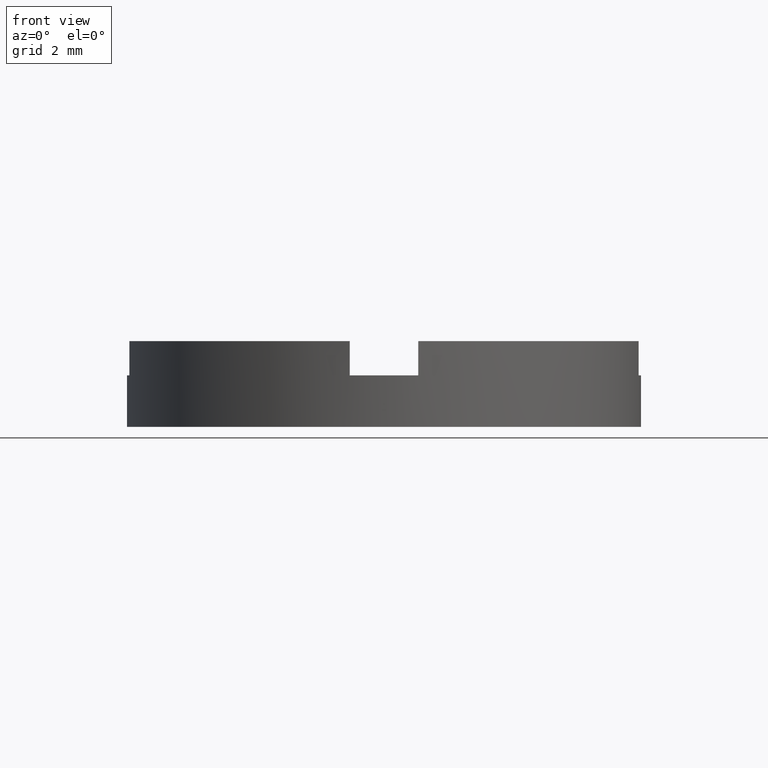
[diagram: clean part render]
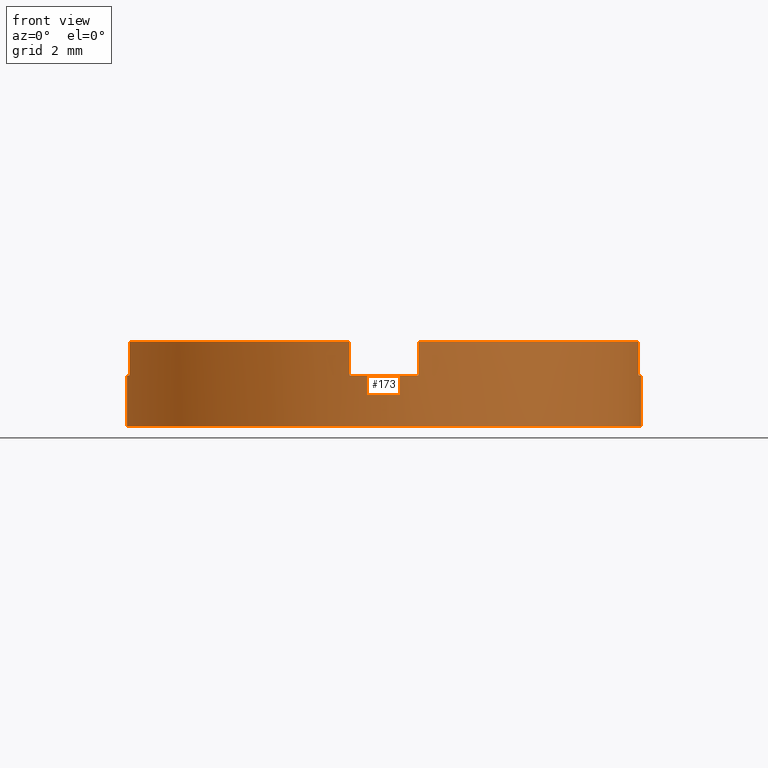
[diagram: same view with one face highlighted and labeled with its STEP entity id]
A machine part, front view. The second image highlights one B-rep face of the part: STEP entity #173.
In plain terms, the highlighted cylindrical surface (partial cylindrical patch) has radius 7.5 mm, axis along (-0, -0, -1).
Its self-contained STEP definition (entity closure, byte-faithful):
#1 = DIRECTION ( 'NONE',  ( -0.000000000000000000, -0.000000000000000000, 1.000000000000000000 ) ) ;
#12 = ORIENTED_EDGE ( 'NONE', *, *, #489, .T. ) ;
#22 = ORIENTED_EDGE ( 'NONE', *, *, #337, .F. ) ;
#25 = ORIENTED_EDGE ( 'NONE', *, *, #435, .F. ) ;
#32 = VECTOR ( 'NONE', #227, 1000.000000000000000 ) ;
#49 = CIRCLE ( 'NONE', #170, 7.500000000000000000 ) ;
#57 = VERTEX_POINT ( 'NONE', #121 ) ;
#58 = CARTESIAN_POINT ( 'NONE',  ( 7.500000000000000000, 9.184850993605147944E-16, 0.000000000000000000 ) ) ;
#68 = EDGE_CURVE ( 'NONE', #685, #541, #293, .T. ) ;
#73 = LINE ( 'NONE', #550, #332 ) ;
#83 = VECTOR ( 'NONE', #1, 1000.000000000000000 ) ;
#99 = VECTOR ( 'NONE', #234, 1000.000000000000000 ) ;
#114 = LINE ( 'NONE', #183, #377 ) ;
#121 = CARTESIAN_POINT ( 'NONE',  ( -0.9999999999999986677, -7.433034373659253013, 2.500000000000000000 ) ) ;
#126 = CARTESIAN_POINT ( 'NONE',  ( -7.433034373659256566, -0.9999999999999733546, 2.500000000000000000 ) ) ;
#127 = VERTEX_POINT ( 'NONE', #317 ) ;
#129 = VERTEX_POINT ( 'NONE', #325 ) ;
#144 = CARTESIAN_POINT ( 'NONE',  ( 0.000000000000000000, 0.000000000000000000, 2.500000000000000000 ) ) ;
#147 = CARTESIAN_POINT ( 'NONE',  ( 0.000000000000000000, 0.000000000000000000, 0.000000000000000000 ) ) ;
#152 = VERTEX_POINT ( 'NONE', #298 ) ;
#166 = EDGE_CURVE ( 'NONE', #127, #152, #49, .T. ) ;
#170 = AXIS2_PLACEMENT_3D ( 'NONE', #445, #493, #528 ) ;
#173 = ADVANCED_FACE ( 'NONE', ( #256 ), #277, .T. ) ;
#174 = DIRECTION ( 'NONE',  ( -0.000000000000000000, -0.000000000000000000, 1.000000000000000000 ) ) ;
#182 = CARTESIAN_POINT ( 'NONE',  ( -7.500000000000000000, 0.000000000000000000, 2.500000000000000000 ) ) ;
#183 = CARTESIAN_POINT ( 'NONE',  ( 1.000000000000001332, -7.433034373659253013, 1.500000000000000000 ) ) ;
#191 = DIRECTION ( 'NONE',  ( 1.000000000000000000, 0.000000000000000000, 0.000000000000000000 ) ) ;
#226 = DIRECTION ( 'NONE',  ( -0.000000000000000000, -0.000000000000000000, 1.000000000000000000 ) ) ;
#227 = DIRECTION ( 'NONE',  ( -0.000000000000000000, -0.000000000000000000, -1.000000000000000000 ) ) ;
#234 = DIRECTION ( 'NONE',  ( -0.000000000000000000, -0.000000000000000000, 1.000000000000000000 ) ) ;
#240 = CARTESIAN_POINT ( 'NONE',  ( -0.9999999999999986677, -7.433034373659253013, 1.500000000000000000 ) ) ;
#245 = CARTESIAN_POINT ( 'NONE',  ( -7.500000000000000000, 0.000000000000000000, 0.000000000000000000 ) ) ;
#256 = FACE_OUTER_BOUND ( 'NONE', #426, .T. ) ;
#263 = ORIENTED_EDGE ( 'NONE', *, *, #536, .T. ) ;
#264 = AXIS2_PLACEMENT_3D ( 'NONE', #599, #624, #692 ) ;
#271 = ORIENTED_EDGE ( 'NONE', *, *, #648, .T. ) ;
#277 = CYLINDRICAL_SURFACE ( 'NONE', #574, 7.500000000000000000 ) ;
#291 = DIRECTION ( 'NONE',  ( -0.000000000000000000, -0.000000000000000000, -1.000000000000000000 ) ) ;
#293 = LINE ( 'NONE', #182, #32 ) ;
#298 = CARTESIAN_POINT ( 'NONE',  ( 7.500000000000000000, 9.184850993605147944E-16, 1.500000000000000000 ) ) ;
#307 = EDGE_CURVE ( 'NONE', #556, #311, #343, .T. ) ;
#311 = VERTEX_POINT ( 'NONE', #126 ) ;
#317 = CARTESIAN_POINT ( 'NONE',  ( 7.433034373659249461, -1.000000000000028866, 1.500000000000000000 ) ) ;
#321 = ORIENTED_EDGE ( 'NONE', *, *, #307, .F. ) ;
#323 = VERTEX_POINT ( 'NONE', #732 ) ;
#325 = CARTESIAN_POINT ( 'NONE',  ( 7.433034373659249461, -1.000000000000028866, 2.500000000000000000 ) ) ;
#330 = VERTEX_POINT ( 'NONE', #58 ) ;
#332 = VECTOR ( 'NONE', #291, 1000.000000000000000 ) ;
#335 = VECTOR ( 'NONE', #226, 1000.000000000000000 ) ;
#337 = EDGE_CURVE ( 'NONE', #323, #680, #634, .T. ) ;
#338 = LINE ( 'NONE', #240, #99 ) ;
#343 = LINE ( 'NONE', #363, #335 ) ;
#360 = CIRCLE ( 'NONE', #758, 7.500000000000000000 ) ;
#363 = CARTESIAN_POINT ( 'NONE',  ( -7.433034373659256566, -0.9999999999999733546, 1.500000000000000000 ) ) ;
#365 = CIRCLE ( 'NONE', #382, 7.500000000000000000 ) ;
#368 = CARTESIAN_POINT ( 'NONE',  ( 1.000000000000001332, -7.433034373659253013, 2.500000000000000000 ) ) ;
#377 = VECTOR ( 'NONE', #174, 1000.000000000000000 ) ;
#382 = AXIS2_PLACEMENT_3D ( 'NONE', #752, #627, #191 ) ;
#396 = ORIENTED_EDGE ( 'NONE', *, *, #760, .F. ) ;
#405 = EDGE_CURVE ( 'NONE', #685, #556, #625, .T. ) ;
#424 = VERTEX_POINT ( 'NONE', #368 ) ;
#426 = EDGE_LOOP ( 'NONE', ( #532, #660, #271, #677, #396, #22, #263, #25, #321, #666, #533, #12 ) ) ;
#435 = EDGE_CURVE ( 'NONE', #311, #57, #360, .T. ) ;
#445 = CARTESIAN_POINT ( 'NONE',  ( 0.000000000000000000, 0.000000000000000000, 1.500000000000000000 ) ) ;
#455 = CARTESIAN_POINT ( 'NONE',  ( -7.500000000000000000, 0.000000000000000000, 1.500000000000000000 ) ) ;
#462 = DIRECTION ( 'NONE',  ( 0.000000000000000000, 0.000000000000000000, 1.000000000000000000 ) ) ;
#489 = EDGE_CURVE ( 'NONE', #541, #330, #621, .T. ) ;
#493 = DIRECTION ( 'NONE',  ( -0.000000000000000000, 0.000000000000000000, 1.000000000000000000 ) ) ;
#509 = DIRECTION ( 'NONE',  ( 1.000000000000000000, 0.000000000000000000, 0.000000000000000000 ) ) ;
#524 = EDGE_CURVE ( 'NONE', #424, #129, #365, .T. ) ;
#528 = DIRECTION ( 'NONE',  ( 1.000000000000000000, 0.000000000000000000, 0.000000000000000000 ) ) ;
#532 = ORIENTED_EDGE ( 'NONE', *, *, #635, .F. ) ;
#533 = ORIENTED_EDGE ( 'NONE', *, *, #68, .T. ) ;
#536 = EDGE_CURVE ( 'NONE', #323, #57, #338, .T. ) ;
#541 = VERTEX_POINT ( 'NONE', #245 ) ;
#547 = DIRECTION ( 'NONE',  ( -1.000000000000000000, 0.000000000000000000, 0.000000000000000000 ) ) ;
#550 = CARTESIAN_POINT ( 'NONE',  ( 7.500000000000000000, 9.184850993605147944E-16, 2.500000000000000000 ) ) ;
#556 = VERTEX_POINT ( 'NONE', #703 ) ;
#573 = DIRECTION ( 'NONE',  ( -0.000000000000000000, 0.000000000000000000, 1.000000000000000000 ) ) ;
#574 = AXIS2_PLACEMENT_3D ( 'NONE', #144, #644, #547 ) ;
#589 = AXIS2_PLACEMENT_3D ( 'NONE', #147, #633, #773 ) ;
#599 = CARTESIAN_POINT ( 'NONE',  ( 0.000000000000000000, 0.000000000000000000, 1.500000000000000000 ) ) ;
#612 = LINE ( 'NONE', #709, #83 ) ;
#621 = CIRCLE ( 'NONE', #589, 7.500000000000000000 ) ;
#624 = DIRECTION ( 'NONE',  ( -0.000000000000000000, 0.000000000000000000, 1.000000000000000000 ) ) ;
#625 = CIRCLE ( 'NONE', #264, 7.500000000000000000 ) ;
#627 = DIRECTION ( 'NONE',  ( 0.000000000000000000, 0.000000000000000000, 1.000000000000000000 ) ) ;
#633 = DIRECTION ( 'NONE',  ( 0.000000000000000000, 0.000000000000000000, 1.000000000000000000 ) ) ;
#634 = CIRCLE ( 'NONE', #746, 7.500000000000000000 ) ;
#635 = EDGE_CURVE ( 'NONE', #152, #330, #73, .T. ) ;
#644 = DIRECTION ( 'NONE',  ( -0.000000000000000000, -0.000000000000000000, -1.000000000000000000 ) ) ;
#648 = EDGE_CURVE ( 'NONE', #127, #129, #612, .T. ) ;
#660 = ORIENTED_EDGE ( 'NONE', *, *, #166, .F. ) ;
#666 = ORIENTED_EDGE ( 'NONE', *, *, #405, .F. ) ;
#677 = ORIENTED_EDGE ( 'NONE', *, *, #524, .F. ) ;
#680 = VERTEX_POINT ( 'NONE', #754 ) ;
#685 = VERTEX_POINT ( 'NONE', #455 ) ;
#692 = DIRECTION ( 'NONE',  ( 1.000000000000000000, 0.000000000000000000, 0.000000000000000000 ) ) ;
#703 = CARTESIAN_POINT ( 'NONE',  ( -7.433034373659256566, -0.9999999999999733546, 1.500000000000000000 ) ) ;
#709 = CARTESIAN_POINT ( 'NONE',  ( 7.433034373659249461, -1.000000000000028866, 1.500000000000000000 ) ) ;
#714 = DIRECTION ( 'NONE',  ( 1.000000000000000000, 0.000000000000000000, 0.000000000000000000 ) ) ;
#720 = CARTESIAN_POINT ( 'NONE',  ( 0.000000000000000000, 0.000000000000000000, 2.500000000000000000 ) ) ;
#732 = CARTESIAN_POINT ( 'NONE',  ( -0.9999999999999986677, -7.433034373659253013, 1.500000000000000000 ) ) ;
#746 = AXIS2_PLACEMENT_3D ( 'NONE', #770, #573, #509 ) ;
#752 = CARTESIAN_POINT ( 'NONE',  ( 0.000000000000000000, 0.000000000000000000, 2.500000000000000000 ) ) ;
#754 = CARTESIAN_POINT ( 'NONE',  ( 1.000000000000001332, -7.433034373659253013, 1.500000000000000000 ) ) ;
#758 = AXIS2_PLACEMENT_3D ( 'NONE', #720, #462, #714 ) ;
#760 = EDGE_CURVE ( 'NONE', #680, #424, #114, .T. ) ;
#770 = CARTESIAN_POINT ( 'NONE',  ( 0.000000000000000000, 0.000000000000000000, 1.500000000000000000 ) ) ;
#773 = DIRECTION ( 'NONE',  ( 1.000000000000000000, 0.000000000000000000, 0.000000000000000000 ) ) ;